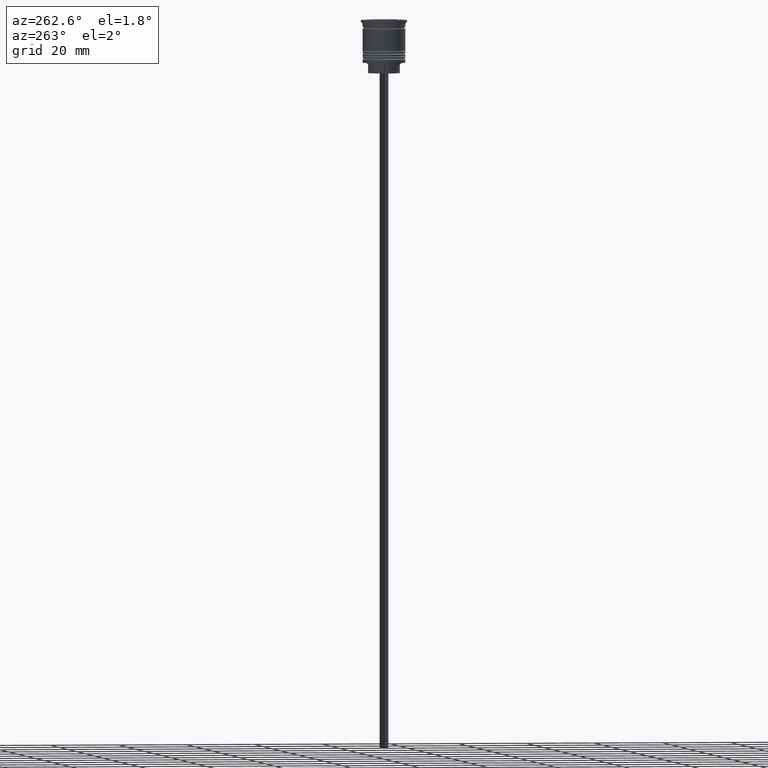
[diagram: clean part render]
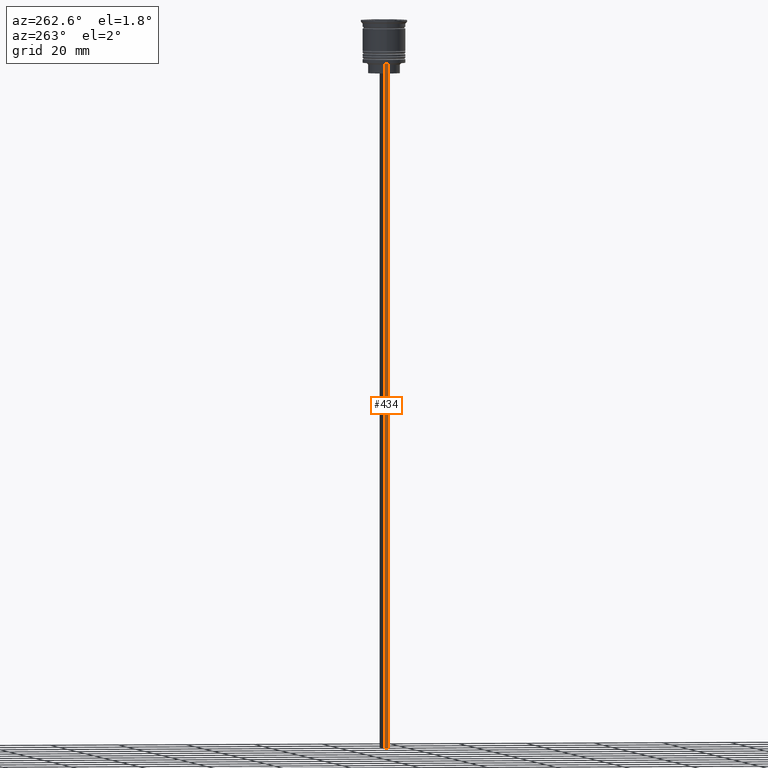
[diagram: same view with one face highlighted and labeled with its STEP entity id]
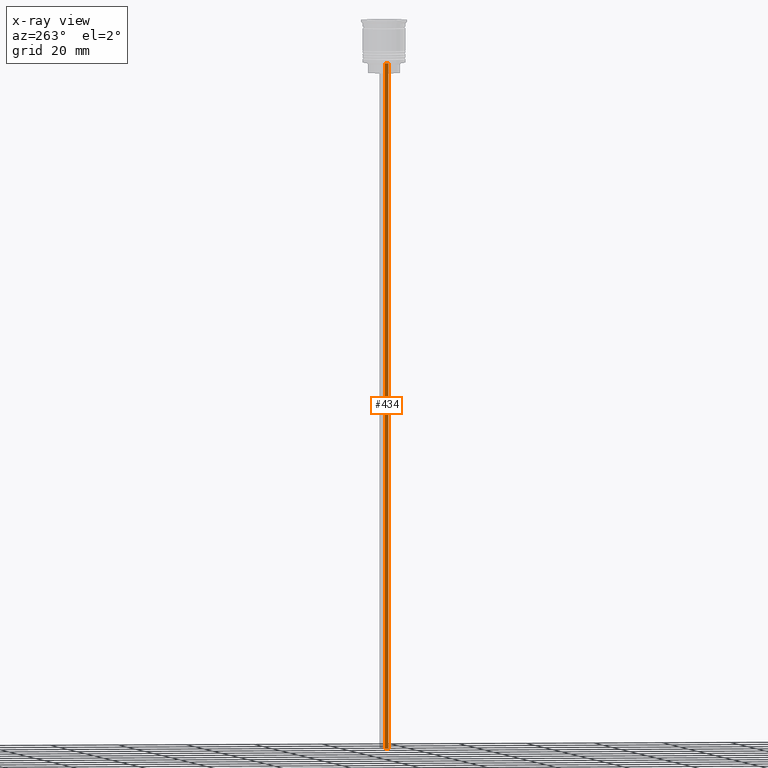
[diagram: x-ray of the same camera — body ghosted, the highlighted face saturated]
A machine part, auxiliary view. The second image highlights one B-rep face of the part: STEP entity #434.
The next image is the same camera in x-ray: the body ghosted, the highlighted face saturated — about 0% of this face is hidden behind the body in this view.
In plain terms, the highlighted planar face has unit normal (-1, 0, 0).
Its self-contained STEP definition (entity closure, byte-faithful):
#8 = LINE ( 'NONE', #1453, #1738 ) ;
#37 = LINE ( 'NONE', #2010, #1550 ) ;
#117 = PLANE ( 'NONE',  #2056 ) ;
#128 = CARTESIAN_POINT ( 'NONE',  ( -5.999999999999983125, 0.4999999999999985012, -12.50000000000000000 ) ) ;
#141 = ORIENTED_EDGE ( 'NONE', *, *, #1973, .T. ) ;
#174 = CARTESIAN_POINT ( 'NONE',  ( -5.999999999999983125, -0.5000000000000017764, -12.50000000000000000 ) ) ;
#306 = VERTEX_POINT ( 'NONE', #412 ) ;
#334 = DIRECTION ( 'NONE',  ( 0.000000000000000000, 0.000000000000000000, 1.000000000000000000 ) ) ;
#352 = DIRECTION ( 'NONE',  ( 0.000000000000000000, 1.000000000000000000, 0.000000000000000000 ) ) ;
#353 = VERTEX_POINT ( 'NONE', #128 ) ;
#412 = CARTESIAN_POINT ( 'NONE',  ( -5.999999999999983125, 0.4999999999999982792, -212.5000000000000284 ) ) ;
#434 = ADVANCED_FACE ( 'NONE', ( #1739 ), #117, .T. ) ;
#477 = CARTESIAN_POINT ( 'NONE',  ( -5.999999999999983125, -0.5000000000000017764, -12.50000000000000000 ) ) ;
#487 = VERTEX_POINT ( 'NONE', #174 ) ;
#529 = ORIENTED_EDGE ( 'NONE', *, *, #1582, .F. ) ;
#572 = LINE ( 'NONE', #1994, #1499 ) ;
#803 = EDGE_CURVE ( 'NONE', #1755, #306, #572, .T. ) ;
#812 = DIRECTION ( 'NONE',  ( 0.000000000000000000, -1.000000000000000000, 0.000000000000000000 ) ) ;
#840 = CARTESIAN_POINT ( 'NONE',  ( -5.999999999999983125, -0.5000000000000017764, -0.4584054212077061097 ) ) ;
#899 = VECTOR ( 'NONE', #812, 1000.000000000000000 ) ;
#999 = ORIENTED_EDGE ( 'NONE', *, *, #803, .F. ) ;
#1167 = CARTESIAN_POINT ( 'NONE',  ( -5.999999999999983125, -0.5000000000000017764, -212.5000000000000284 ) ) ;
#1168 = LINE ( 'NONE', #477, #899 ) ;
#1313 = EDGE_CURVE ( 'NONE', #353, #487, #1168, .T. ) ;
#1374 = EDGE_LOOP ( 'NONE', ( #2158, #141, #999, #529 ) ) ;
#1453 = CARTESIAN_POINT ( 'NONE',  ( -5.999999999999983125, 0.4999999999999982792, -0.4584054212077061097 ) ) ;
#1499 = VECTOR ( 'NONE', #352, 1000.000000000000000 ) ;
#1550 = VECTOR ( 'NONE', #2196, 1000.000000000000000 ) ;
#1582 = EDGE_CURVE ( 'NONE', #487, #1755, #37, .T. ) ;
#1738 = VECTOR ( 'NONE', #2171, 1000.000000000000000 ) ;
#1739 = FACE_OUTER_BOUND ( 'NONE', #1374, .T. ) ;
#1755 = VERTEX_POINT ( 'NONE', #1167 ) ;
#1973 = EDGE_CURVE ( 'NONE', #353, #306, #8, .T. ) ;
#1994 = CARTESIAN_POINT ( 'NONE',  ( -5.999999999999983125, -0.5000000000000017764, -212.5000000000000284 ) ) ;
#2010 = CARTESIAN_POINT ( 'NONE',  ( -5.999999999999983125, -0.5000000000000017764, -0.4584054212077061097 ) ) ;
#2056 = AXIS2_PLACEMENT_3D ( 'NONE', #840, #2332, #334 ) ;
#2158 = ORIENTED_EDGE ( 'NONE', *, *, #1313, .F. ) ;
#2171 = DIRECTION ( 'NONE',  ( 0.000000000000000000, 0.000000000000000000, -1.000000000000000000 ) ) ;
#2196 = DIRECTION ( 'NONE',  ( 0.000000000000000000, 0.000000000000000000, -1.000000000000000000 ) ) ;
#2332 = DIRECTION ( 'NONE',  ( -1.000000000000000000, 0.000000000000000000, 0.000000000000000000 ) ) ;